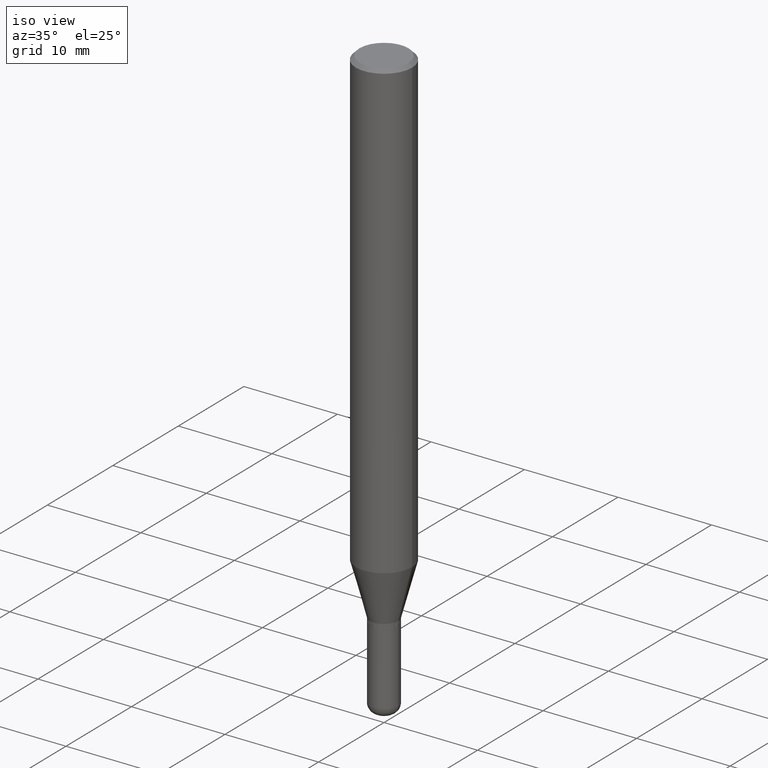
[diagram: clean part render]
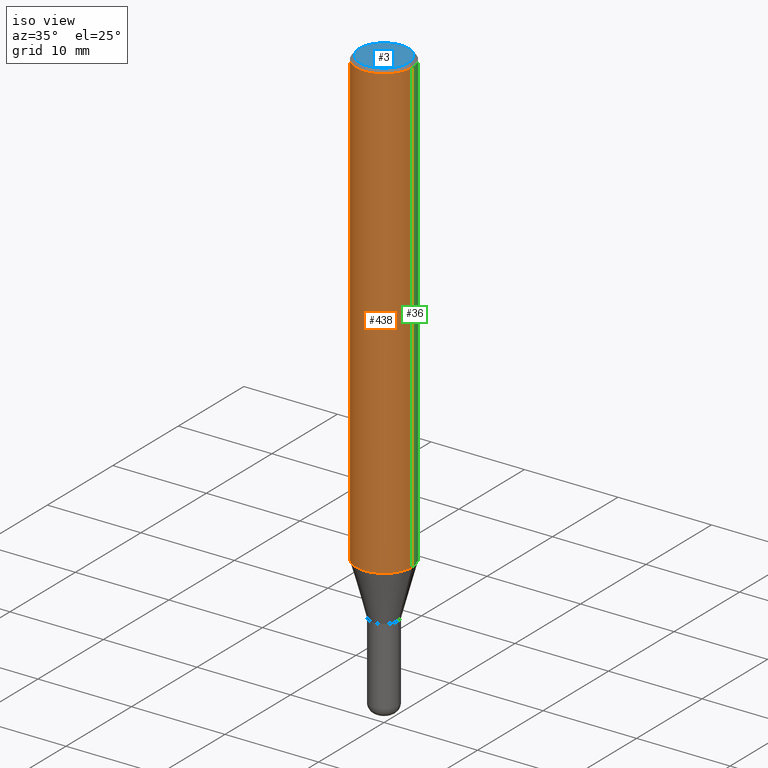
[diagram: same view with three faces highlighted in distinct colors, each labeled with its STEP entity id]
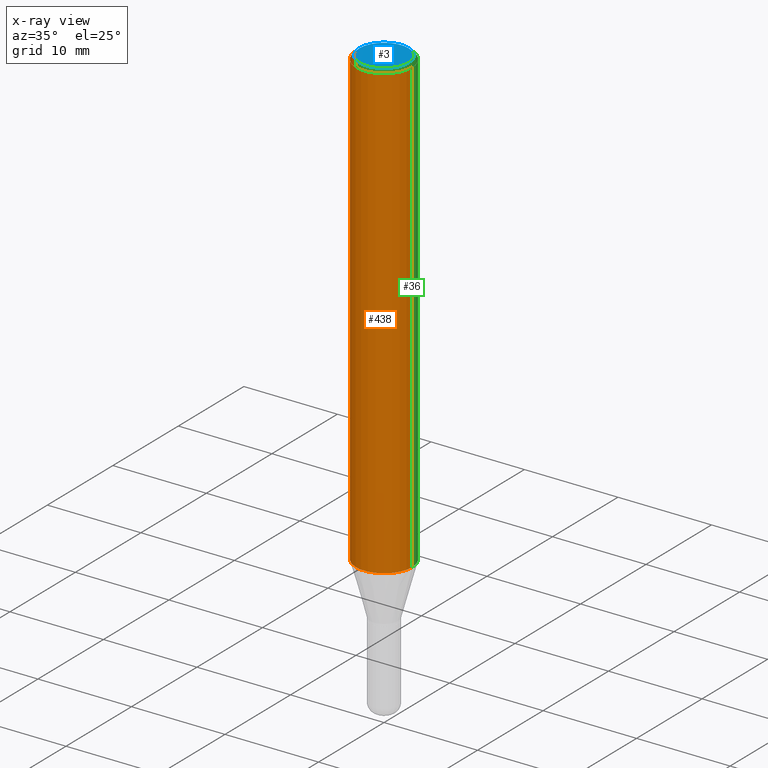
[diagram: x-ray of the same camera — body ghosted, the three highlighted faces saturated]
A machine part, iso view with three faces highlighted in distinct colors.
The next image is the same camera in x-ray (body ghosted, the three faces saturated) — at least one of them is partly hidden behind the body in this view.
Their STEP definitions:

[orange] entity #438 — the highlighted cylindrical surface (edge-blend (fillet) strip) has radius 2.9997 mm, axis along (-0, 0, 1).
#13 = CARTESIAN_POINT ( 'NONE',  ( 0.1180999999999999966, -8.246878922347480654E-16, 5.758764772215000440E-30 ) ) ;
#16 = EDGE_CURVE ( 'NONE', #373, #432, #75, .T. ) ;
#27 = EDGE_LOOP ( 'NONE', ( #290, #112, #469, #415 ) ) ;
#73 = CARTESIAN_POINT ( 'NONE',  ( 0.000000000000000000, 0.000000000000000000, 0.000000000000000000 ) ) ;
#75 = CIRCLE ( 'NONE', #114, 0.1180999999999999966 ) ;
#112 = ORIENTED_EDGE ( 'NONE', *, *, #118, .T. ) ;
#114 = AXIS2_PLACEMENT_3D ( 'NONE', #269, #137, #161 ) ;
#118 = EDGE_CURVE ( 'NONE', #146, #261, #203, .T. ) ;
#132 = LINE ( 'NONE', #260, #426 ) ;
#137 = DIRECTION ( 'NONE',  ( -2.445468806185136597E-29, 3.491481338843145583E-15, 1.000000000000000000 ) ) ;
#146 = VERTEX_POINT ( 'NONE', #513 ) ;
#148 = CYLINDRICAL_SURFACE ( 'NONE', #355, 0.1180999999999999966 ) ;
#159 = CARTESIAN_POINT ( 'NONE',  ( 4.683861182530489821E-29, -6.687312416815562340E-15, -1.915322399813057963 ) ) ;
#161 = DIRECTION ( 'NONE',  ( 1.000000000000000000, -6.982962677686266711E-15, 0.000000000000000000 ) ) ;
#165 = LINE ( 'NONE', #13, #229 ) ;
#174 = EDGE_CURVE ( 'NONE', #261, #432, #165, .T. ) ;
#203 = CIRCLE ( 'NONE', #255, 0.1180999999999999966 ) ;
#229 = VECTOR ( 'NONE', #399, 39.37007874015748143 ) ;
#234 = EDGE_CURVE ( 'NONE', #146, #373, #132, .T. ) ;
#235 = DIRECTION ( 'NONE',  ( -2.445468806185136597E-29, 3.491481338843145583E-15, 1.000000000000000000 ) ) ;
#237 = DIRECTION ( 'NONE',  ( 1.000000000000000000, -6.982962677686266711E-15, 4.876176775795936353E-29 ) ) ;
#255 = AXIS2_PLACEMENT_3D ( 'NONE', #159, #312, #308 ) ;
#260 = CARTESIAN_POINT ( 'NONE',  ( -0.1180999999999999966, 8.391509709326782957E-16, -5.809262341591043784E-30 ) ) ;
#261 = VERTEX_POINT ( 'NONE', #448 ) ;
#269 = CARTESIAN_POINT ( 'NONE',  ( 3.668203209277694140E-31, -5.237222008264703607E-17, -0.01499999999999995781 ) ) ;
#290 = ORIENTED_EDGE ( 'NONE', *, *, #234, .F. ) ;
#308 = DIRECTION ( 'NONE',  ( 1.000000000000000000, -6.982962677686265133E-15, 0.000000000000000000 ) ) ;
#312 = DIRECTION ( 'NONE',  ( -2.445468806185136597E-29, 3.491481338843145583E-15, 1.000000000000000000 ) ) ;
#355 = AXIS2_PLACEMENT_3D ( 'NONE', #73, #235, #237 ) ;
#373 = VERTEX_POINT ( 'NONE', #375 ) ;
#375 = CARTESIAN_POINT ( 'NONE',  ( -0.1180999999999999966, -2.530691347516425921E-15, -0.01499999999999995781 ) ) ;
#399 = DIRECTION ( 'NONE',  ( -2.445468806185136877E-29, 3.491481338843145188E-15, 1.000000000000000000 ) ) ;
#404 = DIRECTION ( 'NONE',  ( -2.445468806185136877E-29, 3.491481338843145188E-15, 1.000000000000000000 ) ) ;
#415 = ORIENTED_EDGE ( 'NONE', *, *, #16, .F. ) ;
#419 = CARTESIAN_POINT ( 'NONE',  ( 0.1180999999999999966, -8.770601123173951446E-16, -0.01499999999999995781 ) ) ;
#426 = VECTOR ( 'NONE', #404, 39.37007874015748143 ) ;
#432 = VERTEX_POINT ( 'NONE', #419 ) ;
#438 = ADVANCED_FACE ( 'NONE', ( #467 ), #148, .T. ) ;
#448 = CARTESIAN_POINT ( 'NONE',  ( 0.1180999999999999966, -7.512000309050311391E-15, -1.915322399813057963 ) ) ;
#467 = FACE_OUTER_BOUND ( 'NONE', #27, .T. ) ;
#469 = ORIENTED_EDGE ( 'NONE', *, *, #174, .T. ) ;
#513 = CARTESIAN_POINT ( 'NONE',  ( -0.1180999999999999966, -5.848161445882884932E-15, -1.915322399813057963 ) ) ;

[blue] entity #3 — the highlighted planar face has unit normal (0, -0, -1).
#3 = ADVANCED_FACE ( 'NONE', ( #178 ), #68, .F. ) ;
#9 = DIRECTION ( 'NONE',  ( 1.000000000000000000, -6.982962677686265922E-15, 4.876176775795935232E-29 ) ) ;
#28 = DIRECTION ( 'NONE',  ( 2.438088387897960049E-29, -3.491481338843145188E-15, -1.000000000000000000 ) ) ;
#42 = AXIS2_PLACEMENT_3D ( 'NONE', #173, #452, #284 ) ;
#68 = PLANE ( 'NONE',  #331 ) ;
#103 = EDGE_LOOP ( 'NONE', ( #299, #294 ) ) ;
#109 = CARTESIAN_POINT ( 'NONE',  ( -0.1031000000000000111, 7.461295621107775452E-16, -5.126375781645864005E-30 ) ) ;
#115 = CIRCLE ( 'NONE', #264, 0.1031000000000000111 ) ;
#172 = VERTEX_POINT ( 'NONE', #211 ) ;
#173 = CARTESIAN_POINT ( 'NONE',  ( 0.000000000000000000, 0.000000000000000000, 0.000000000000000000 ) ) ;
#176 = CIRCLE ( 'NONE', #42, 0.1031000000000000111 ) ;
#178 = FACE_OUTER_BOUND ( 'NONE', #103, .T. ) ;
#180 = CARTESIAN_POINT ( 'NONE',  ( 0.000000000000000000, 0.000000000000000000, 0.000000000000000000 ) ) ;
#211 = CARTESIAN_POINT ( 'NONE',  ( 0.1031000000000000111, -7.849571885948548761E-16, 5.261941714946591942E-30 ) ) ;
#215 = EDGE_CURVE ( 'NONE', #500, #172, #176, .T. ) ;
#259 = EDGE_CURVE ( 'NONE', #172, #500, #115, .T. ) ;
#264 = AXIS2_PLACEMENT_3D ( 'NONE', #180, #357, #9 ) ;
#284 = DIRECTION ( 'NONE',  ( 1.000000000000000000, -6.982962677686265922E-15, 4.876176775795935232E-29 ) ) ;
#294 = ORIENTED_EDGE ( 'NONE', *, *, #259, .T. ) ;
#297 = CARTESIAN_POINT ( 'NONE',  ( 7.199434520694541042E-16, 0.1031000000000000111, -3.599717260347282847E-16 ) ) ;
#299 = ORIENTED_EDGE ( 'NONE', *, *, #215, .T. ) ;
#301 = DIRECTION ( 'NONE',  ( -1.000000000000000000, 6.982962677686265922E-15, -4.876176775795935793E-29 ) ) ;
#331 = AXIS2_PLACEMENT_3D ( 'NONE', #297, #28, #301 ) ;
#357 = DIRECTION ( 'NONE',  ( -2.445468806185136597E-29, 3.491481338843145583E-15, 1.000000000000000000 ) ) ;
#452 = DIRECTION ( 'NONE',  ( -2.445468806185136597E-29, 3.491481338843145583E-15, 1.000000000000000000 ) ) ;
#500 = VERTEX_POINT ( 'NONE', #109 ) ;

[green] entity #36 — the highlighted cylindrical surface (edge-blend (fillet) strip) has radius 2.9997 mm, axis along (-0, 0, 1).
#13 = CARTESIAN_POINT ( 'NONE',  ( 0.1180999999999999966, -8.246878922347480654E-16, 5.758764772215000440E-30 ) ) ;
#31 = DIRECTION ( 'NONE',  ( -2.445468806185136597E-29, 3.491481338843145583E-15, 1.000000000000000000 ) ) ;
#36 = ADVANCED_FACE ( 'NONE', ( #478 ), #50, .T. ) ;
#47 = ORIENTED_EDGE ( 'NONE', *, *, #234, .T. ) ;
#50 = CYLINDRICAL_SURFACE ( 'NONE', #105, 0.1180999999999999966 ) ;
#52 = DIRECTION ( 'NONE',  ( 1.000000000000000000, -6.982962677686266711E-15, 4.876176775795936353E-29 ) ) ;
#104 = DIRECTION ( 'NONE',  ( 1.000000000000000000, -6.982962677686265133E-15, 0.000000000000000000 ) ) ;
#105 = AXIS2_PLACEMENT_3D ( 'NONE', #129, #445, #52 ) ;
#129 = CARTESIAN_POINT ( 'NONE',  ( 0.000000000000000000, 0.000000000000000000, 0.000000000000000000 ) ) ;
#132 = LINE ( 'NONE', #260, #426 ) ;
#136 = CARTESIAN_POINT ( 'NONE',  ( 4.683861182530489821E-29, -6.687312416815562340E-15, -1.915322399813057963 ) ) ;
#146 = VERTEX_POINT ( 'NONE', #513 ) ;
#165 = LINE ( 'NONE', #13, #229 ) ;
#174 = EDGE_CURVE ( 'NONE', #261, #432, #165, .T. ) ;
#229 = VECTOR ( 'NONE', #399, 39.37007874015748143 ) ;
#232 = ORIENTED_EDGE ( 'NONE', *, *, #174, .F. ) ;
#234 = EDGE_CURVE ( 'NONE', #146, #373, #132, .T. ) ;
#260 = CARTESIAN_POINT ( 'NONE',  ( -0.1180999999999999966, 8.391509709326782957E-16, -5.809262341591043784E-30 ) ) ;
#261 = VERTEX_POINT ( 'NONE', #448 ) ;
#270 = CARTESIAN_POINT ( 'NONE',  ( 3.668203209277694140E-31, -5.237222008264703607E-17, -0.01499999999999995781 ) ) ;
#276 = EDGE_CURVE ( 'NONE', #261, #146, #406, .T. ) ;
#329 = ORIENTED_EDGE ( 'NONE', *, *, #276, .T. ) ;
#343 = EDGE_CURVE ( 'NONE', #432, #373, #443, .T. ) ;
#371 = DIRECTION ( 'NONE',  ( 1.000000000000000000, -6.982962677686266711E-15, 0.000000000000000000 ) ) ;
#373 = VERTEX_POINT ( 'NONE', #375 ) ;
#375 = CARTESIAN_POINT ( 'NONE',  ( -0.1180999999999999966, -2.530691347516425921E-15, -0.01499999999999995781 ) ) ;
#399 = DIRECTION ( 'NONE',  ( -2.445468806185136877E-29, 3.491481338843145188E-15, 1.000000000000000000 ) ) ;
#404 = DIRECTION ( 'NONE',  ( -2.445468806185136877E-29, 3.491481338843145188E-15, 1.000000000000000000 ) ) ;
#406 = CIRCLE ( 'NONE', #457, 0.1180999999999999966 ) ;
#419 = CARTESIAN_POINT ( 'NONE',  ( 0.1180999999999999966, -8.770601123173951446E-16, -0.01499999999999995781 ) ) ;
#426 = VECTOR ( 'NONE', #404, 39.37007874015748143 ) ;
#432 = VERTEX_POINT ( 'NONE', #419 ) ;
#443 = CIRCLE ( 'NONE', #466, 0.1180999999999999966 ) ;
#445 = DIRECTION ( 'NONE',  ( -2.445468806185136597E-29, 3.491481338843145583E-15, 1.000000000000000000 ) ) ;
#448 = CARTESIAN_POINT ( 'NONE',  ( 0.1180999999999999966, -7.512000309050311391E-15, -1.915322399813057963 ) ) ;
#449 = DIRECTION ( 'NONE',  ( -2.445468806185136597E-29, 3.491481338843145583E-15, 1.000000000000000000 ) ) ;
#457 = AXIS2_PLACEMENT_3D ( 'NONE', #136, #449, #104 ) ;
#466 = AXIS2_PLACEMENT_3D ( 'NONE', #270, #31, #371 ) ;
#478 = FACE_OUTER_BOUND ( 'NONE', #507, .T. ) ;
#498 = ORIENTED_EDGE ( 'NONE', *, *, #343, .F. ) ;
#507 = EDGE_LOOP ( 'NONE', ( #329, #47, #498, #232 ) ) ;
#513 = CARTESIAN_POINT ( 'NONE',  ( -0.1180999999999999966, -5.848161445882884932E-15, -1.915322399813057963 ) ) ;